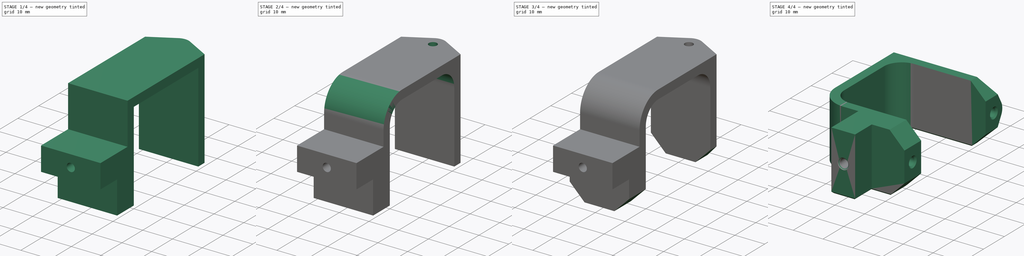
[diagram: build sequence overview — one tinted view per stage of 4, left to right]
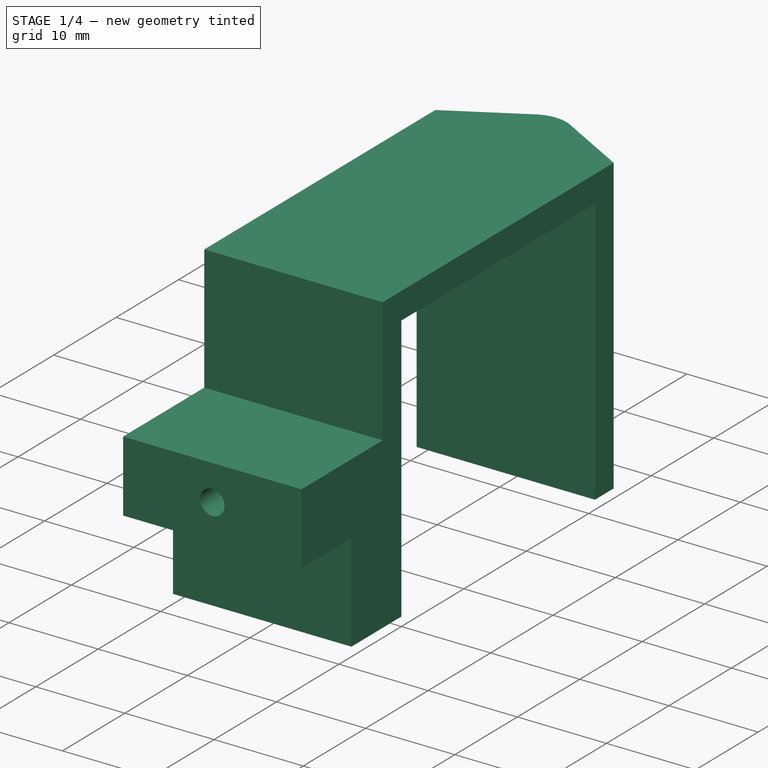
[diagram: stage 1 of 4 — iso view after this stage's code; geometry added in this stage tinted green]
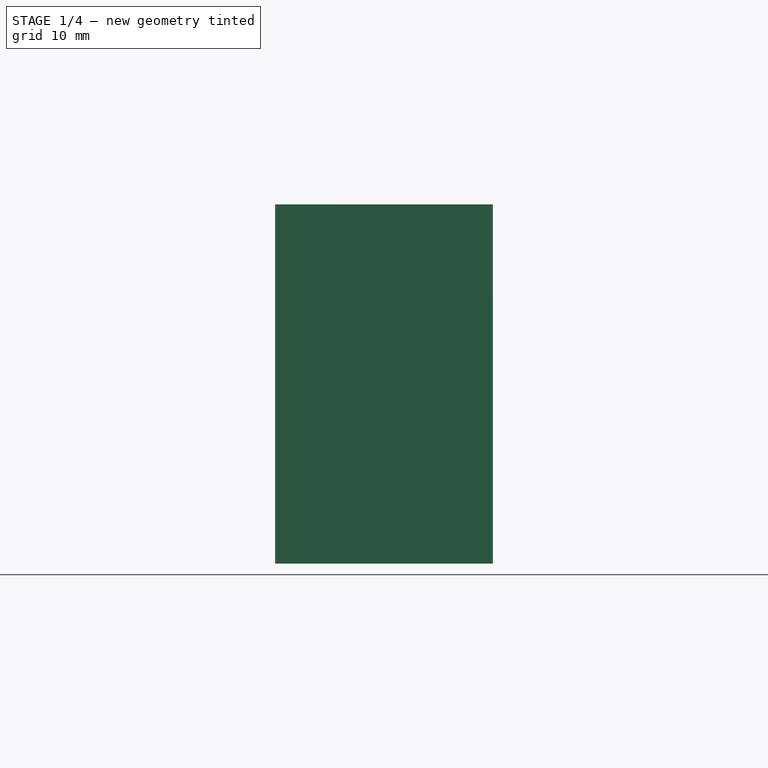
[diagram: stage 1 of 4 — front view after this stage's code; geometry added in this stage tinted green]
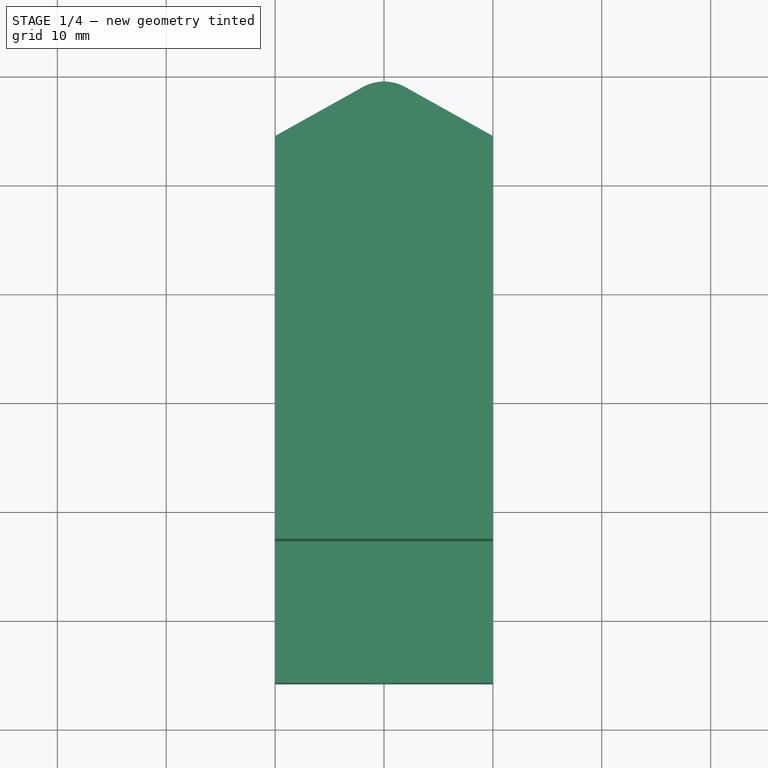
[diagram: stage 1 of 4 — top view after this stage's code; geometry added in this stage tinted green]
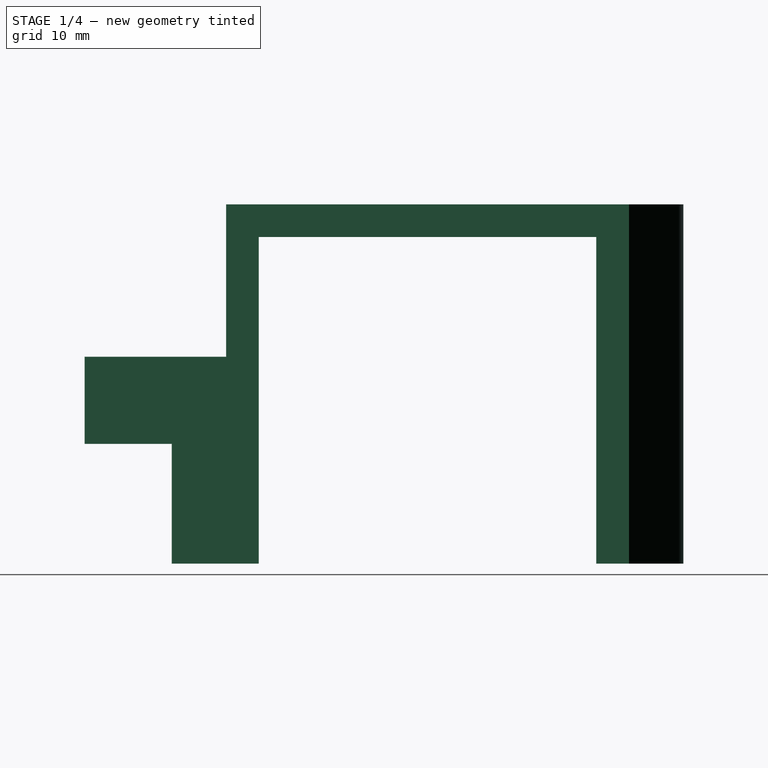
[diagram: stage 1 of 4 — right view after this stage's code; geometry added in this stage tinted green]
FCSTD DOCUMENT  (FreeCAD 0.14R3692 (Git))
Label: battery-bracket
License: The MIT License
LicenseURL: http://opensource.org/licenses/MIT
objects: Sketcher::SketchObject×5, PartDesign::Pocket×3, Part::Chamfer×3, PartDesign::Pad×2, Part::FeaturePython×2, Part::Fillet×1, Part::Feature×1, App::DocumentObjectGroup×1
note: 22 computed .brp shape members not serialized (recipe doc carries the construction recipe); baked Part::Feature solids carry a one-line shape summary decoded from their .brp

FEATURE [Sketcher::SketchObject] Sketch  label="bracket-sketch"
  Placement = pos=(0,0,0) rot=(0.57735,0.57735,0.57735;2.0944rad)
  sketch-geometry (12):
    g0: LineSegment StartX=4 StartY=4 StartZ=0 EndX=17 EndY=4 EndZ=0
    g1: LineSegment StartX=17 StartY=4 StartZ=0 EndX=17 EndY=18 EndZ=0
    g2: LineSegment StartX=17 StartY=18 StartZ=0 EndX=54 EndY=18 EndZ=0
    g3: LineSegment StartX=54 StartY=18 StartZ=0 EndX=54 EndY=-15 EndZ=0
    g4: LineSegment StartX=54 StartY=-15 StartZ=0 EndX=51 EndY=-15 EndZ=0
    g5: LineSegment StartX=51 StartY=-15 StartZ=0 EndX=51 EndY=15 EndZ=0
    g6: LineSegment StartX=51 StartY=15 StartZ=0 EndX=20 EndY=15 EndZ=0
    g7: LineSegment StartX=20 StartY=15 StartZ=0 EndX=20 EndY=-15 EndZ=0
    g8: LineSegment StartX=20 StartY=-15 StartZ=0 EndX=12 EndY=-15 EndZ=0
    g9: LineSegment StartX=12 StartY=-15 StartZ=0 EndX=12 EndY=-4 EndZ=0
    g10: LineSegment StartX=12 StartY=-4 StartZ=0 EndX=4 EndY=-4 EndZ=0
    g11: LineSegment StartX=4 StartY=-4 StartZ=0 EndX=4 EndY=4 EndZ=0
  constraints (36):
    c: Horizontal(g0)
    c: Coincident(g0,g1)
    c: Vertical(g1)
    c: Coincident(g1,g2)
    c: Horizontal(g2)
    c: Coincident(g2,g3)
    c: Vertical(g3)
    c: Coincident(g3,g4)
    c: Horizontal(g4)
    c: Coincident(g4,g5)
    c: Vertical(g5)
    c: Coincident(g5,g6)
    c: Horizontal(g6)
    c: Coincident(g6,g7)
    c: Coincident(g7,g8)
    c: Horizontal(g8)
    c: Coincident(g8,g9)
    c: Vertical(g9)
    c: Coincident(g9,g10)
    c: Horizontal(g10)
    c: Coincident(g10,g11)
    c: Vertical(g11)
    c: Vertical(g7)
    c: Coincident(g0,g11)
    c: Symmetric(g0,g10,g-1)
    c: DistanceY(g11) = 8
    c: DistanceX(g-1,g10) = 4
    c: DistanceY(g-1,g1) = 18
    c: DistanceY(g-1,g8) = -15
    c: DistanceY(g-1,g3) = -15
    c: DistanceX(g6) = -31
    c: DistanceY(g7) = -30
    c: DistanceX(g4) = -3
    c: DistanceX(g0,g6) = 3
    c: DistanceX(g8) = -8
    c: DistanceX(g10) = -8
FEATURE [PartDesign::Pad] Pad  label="bracket-pad"
  Length = 20
  Length2 = 100
  Midplane = true
  Placement = pos=(0,0,0) rot=(0.57735,0.57735,0.57735;2.0944rad)
  Sketch = -> Sketch
  Type = 0
FEATURE [Sketcher::SketchObject] Sketch001  label="motor-bracket-screw-hole-sketch"
  Placement = pos=(0,4,0) rot=(-0.57735,-0.57735,0.57735;4.18879rad)
  Support = -> Pad [Face12]
  sketch-geometry (1):
    g0: Circle CenterX=0 CenterY=0 CenterZ=0 NormalX=0 NormalY=0 NormalZ=1 Radius=1.375
  constraints (2):
    c: Coincident(g0,g-1)
    c: Radius(g0) = 1.375
FEATURE [PartDesign::Pocket] Pocket  label="motor-bracket-screw-hole-pocket"
  Length = 10
  Placement = pos=(0,0,0) rot=(0.57735,0.57735,0.57735;2.0944rad)
  Sketch = -> Sketch001
  Type = 0
FEATURE [Sketcher::SketchObject] Sketch002  label="bracket-rear-sketch"
  Placement = pos=(0,0,18) rot=(0,0,-1;1.5708rad)
  Support = -> Pocket [Face8]
  sketch-geometry (4):
    g0: ArcOfCircle CenterX=-55 CenterY=0 CenterZ=0 NormalX=0 NormalY=0 NormalZ=1 Radius=4 StartAngle=2.63257 EndAngle=3.65061
    g1: LineSegment StartX=-58.4929 StartY=1.94929 StartZ=0 EndX=-54 EndY=10 EndZ=0
    g2: LineSegment StartX=-54 StartY=10 StartZ=0 EndX=-54 EndY=-10 EndZ=0
    g3: LineSegment StartX=-54 StartY=-10 StartZ=0 EndX=-58.4929 EndY=-1.94929 EndZ=0
  constraints (13):
    c: PointOnObject(g0,g-1)
    c: DistanceX(g-1,g0) = -55
    c: Radius(g0) = 4
    c: Coincident(g1,g2)
    c: Coincident(g2,g3)
    c: Coincident(g1,g0)
    c: Coincident(g3,g0)
    c: Tangent(g0,g1)
    c: Tangent(g0,g3)
    c: Equal(g3,g1)
    c: DistanceY(g2) = -20
    c: Vertical(g2)
    c: DistanceX(g2,g0) = -1
FEATURE [PartDesign::Pad] Pad001  label="bracket-rear-pad"
  Length = 33
  Length2 = 100
  Placement = pos=(0,0,0) rot=(0.57735,0.57735,0.57735;2.0944rad)
  Reversed = true
  Sketch = -> Sketch002
  Type = 0
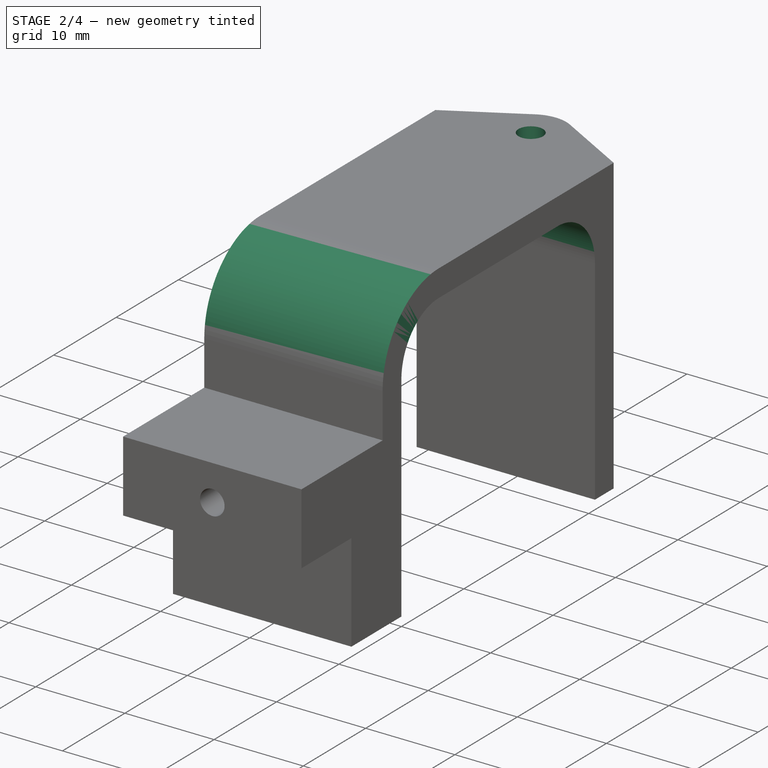
[diagram: stage 2 of 4 — iso view after this stage's code; geometry added in this stage tinted green]
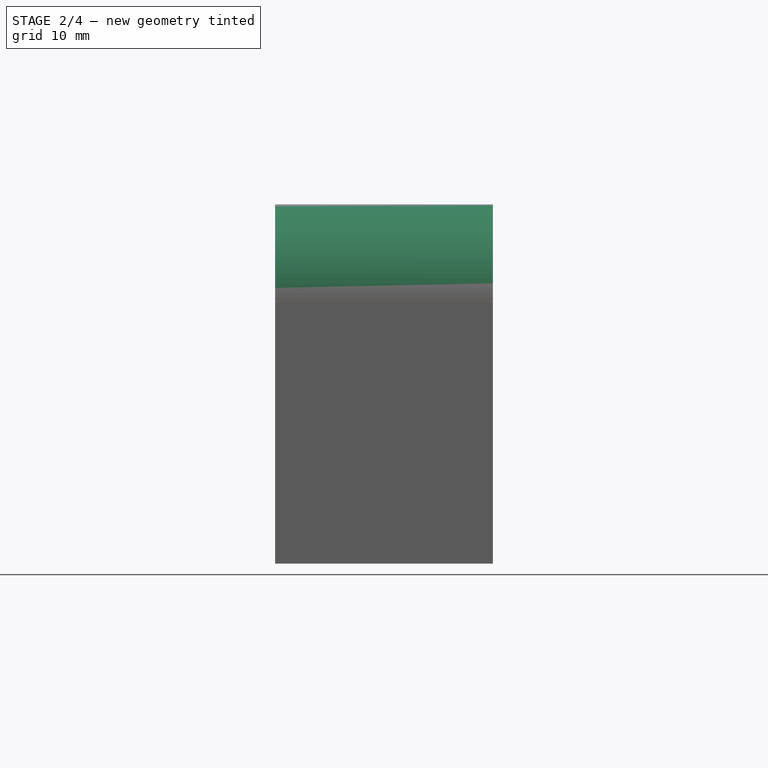
[diagram: stage 2 of 4 — front view after this stage's code; geometry added in this stage tinted green]
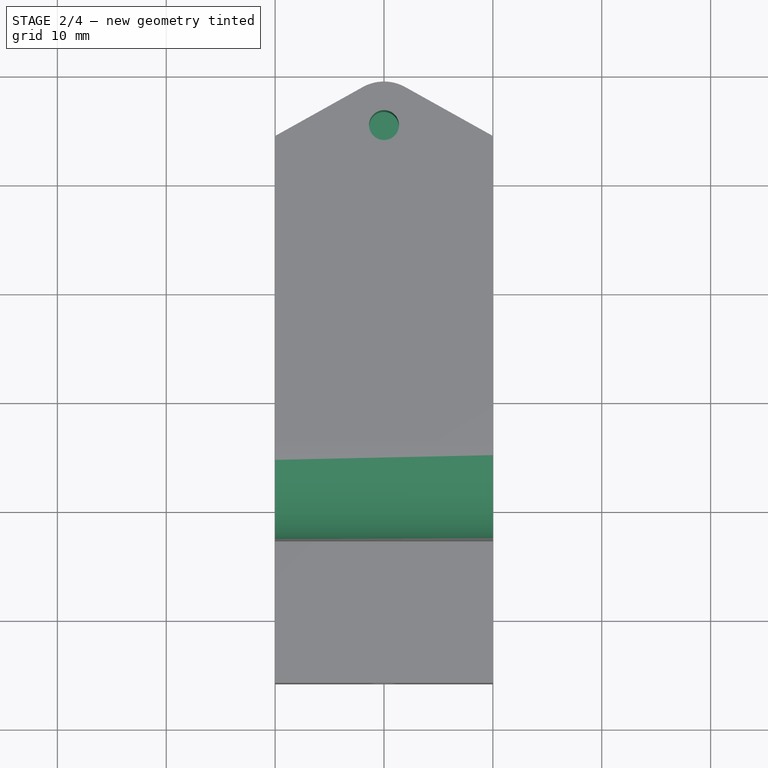
[diagram: stage 2 of 4 — top view after this stage's code; geometry added in this stage tinted green]
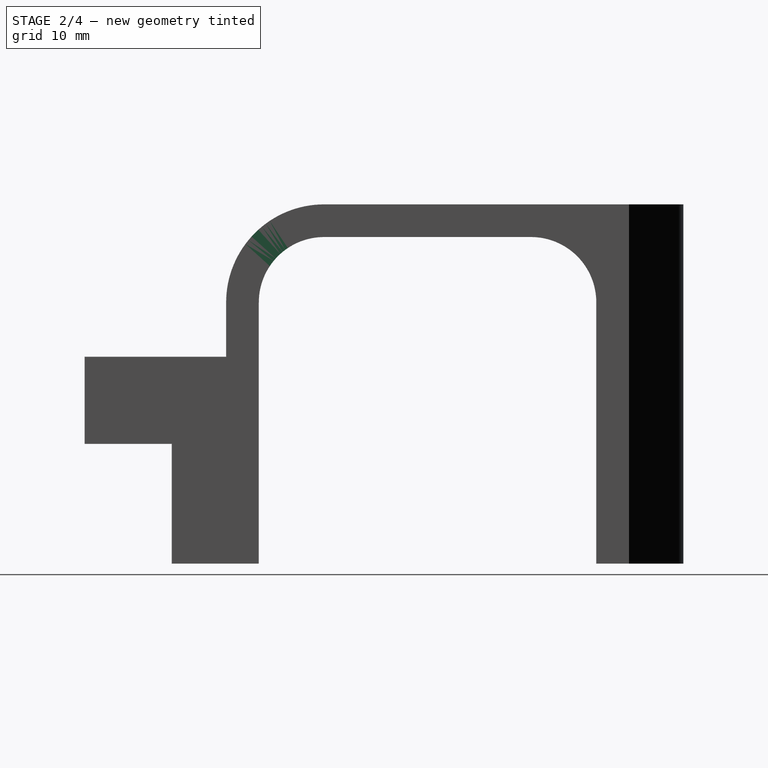
[diagram: stage 2 of 4 — right view after this stage's code; geometry added in this stage tinted green]
FEATURE [Sketcher::SketchObject] Sketch003  label="top-screw-hole-sketch"
  Placement = pos=(0,0,18) rot=(0,0,-1;1.5708rad)
  Support = -> Pad001 [Face17]
  sketch-geometry (1):
    g0: Circle CenterX=-55 CenterY=0 CenterZ=0 NormalX=0 NormalY=0 NormalZ=1 Radius=1.375
  constraints (3):
    c: PointOnObject(g0,g-1)
    c: DistanceX(g-1,g0) = -55
    c: Radius(g0) = 1.375
FEATURE [PartDesign::Pocket] Pocket001  label="top-screw-hole-pocket"
  Length = 10
  Placement = pos=(0,0,0) rot=(0.57735,0.57735,0.57735;2.0944rad)
  Sketch = -> Sketch003
  Type = 0
FEATURE [Sketcher::SketchObject] Sketch004  label="bottom-screw-holes-sketch"
  Placement = pos=(0,0,-15) rot=(0.707107,0.707107,0;3.14159rad)
  Support = -> Pocket001 [Face12]
  sketch-geometry (2):
    g0: Circle CenterX=55 CenterY=0 CenterZ=0 NormalX=0 NormalY=0 NormalZ=1 Radius=1.375
    g1: Circle CenterX=16 CenterY=0 CenterZ=0 NormalX=0 NormalY=0 NormalZ=1 Radius=1.375
  constraints (6):
    c: PointOnObject(g0,g-1)
    c: PointOnObject(g1,g-1)
    c: Radius(g1) = 1.375
    c: Radius(g0) = 1.375
    c: DistanceX(g-1,g0) = 55
    c: DistanceX(g-1,g1) = 16
FEATURE [PartDesign::Pocket] Pocket002  label="bottom-screw-holes-pocket"
  Length = 10
  Placement = pos=(0,0,0) rot=(0.57735,0.57735,0.57735;2.0944rad)
  Sketch = -> Sketch004
  Type = 0
FEATURE [Part::Fillet] Fillet  label="battery-fillet"
  Base = -> Pocket002
  Edges = 3 edges: [Edge9 r=9,Edge46 r=6,Edge47 r=6]
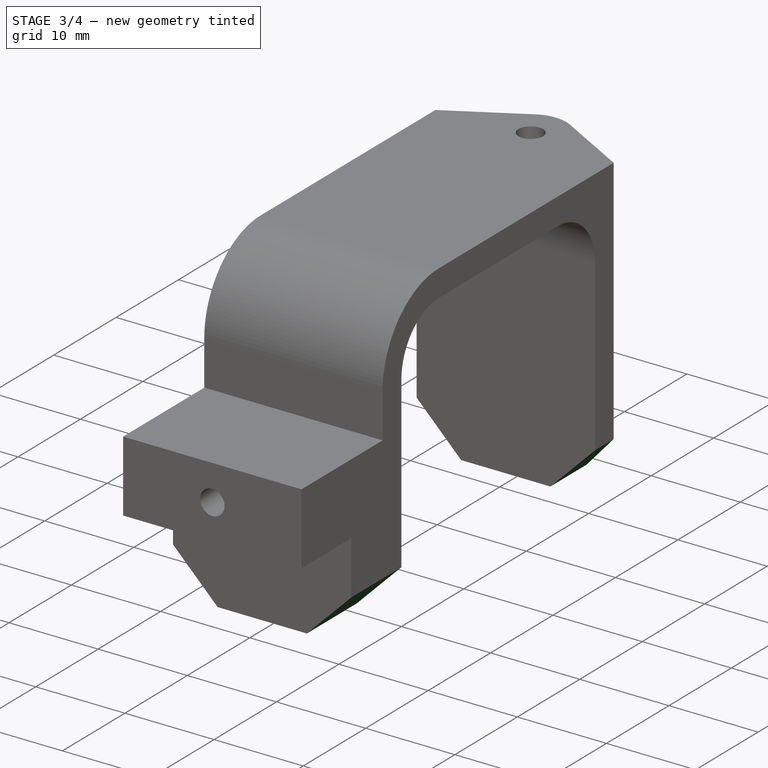
[diagram: stage 3 of 4 — iso view after this stage's code; geometry added in this stage tinted green]
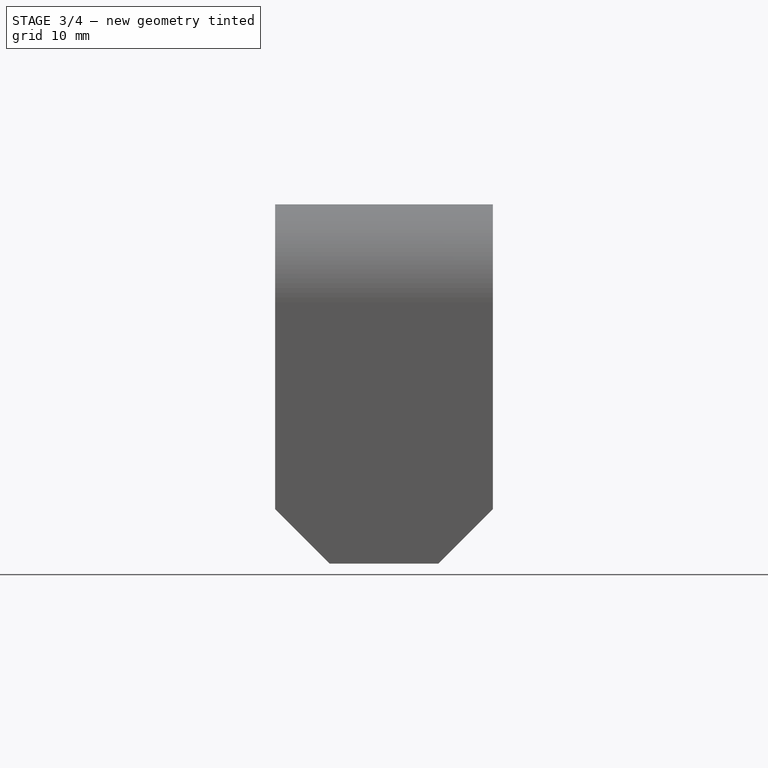
[diagram: stage 3 of 4 — front view after this stage's code; geometry added in this stage tinted green]
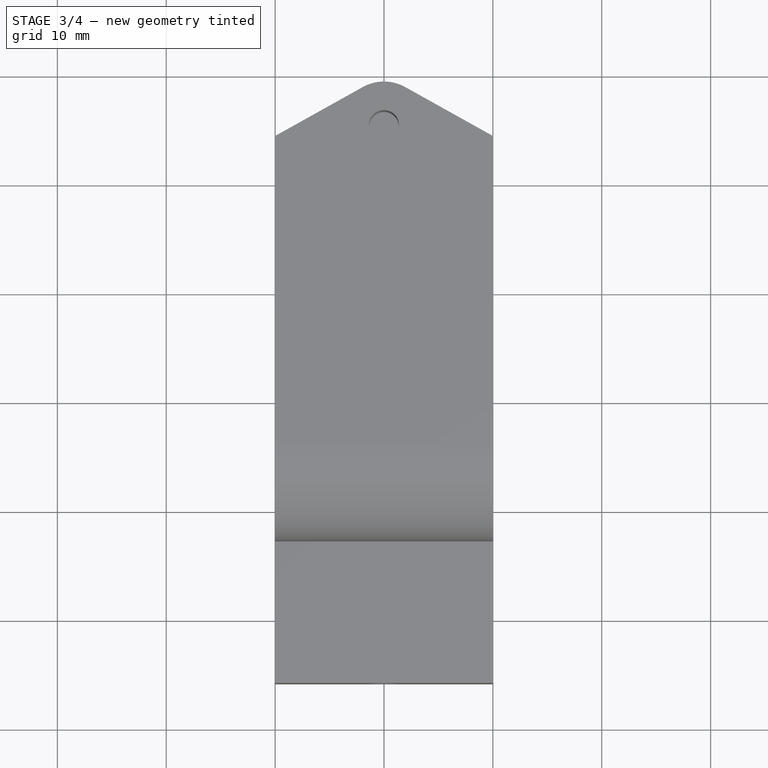
[diagram: stage 3 of 4 — top view after this stage's code; geometry added in this stage tinted green]
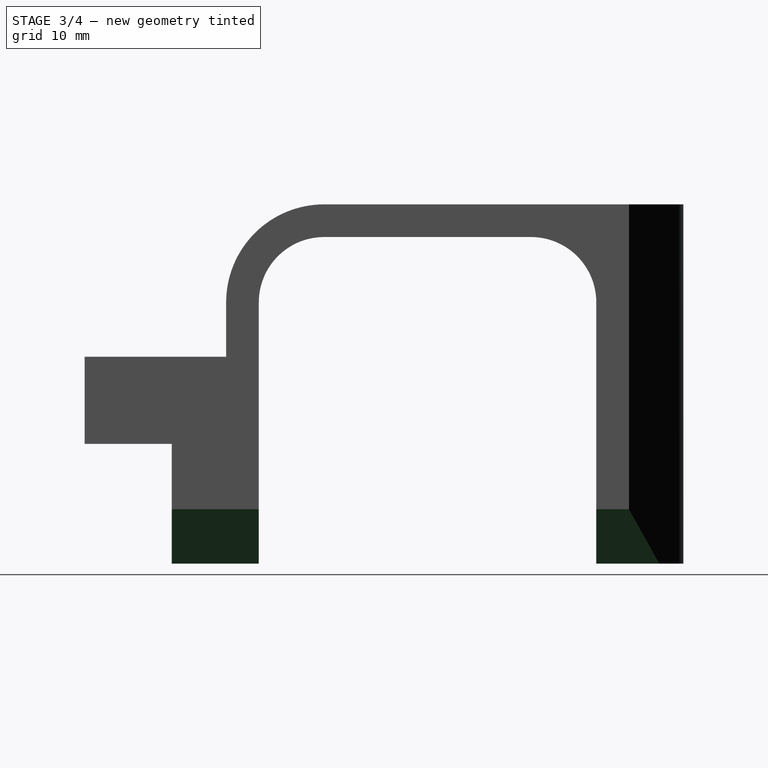
[diagram: stage 3 of 4 — right view after this stage's code; geometry added in this stage tinted green]
FEATURE [Part::Chamfer] Chamfer  label="bottom-chamfer"
  Base = -> Fillet
  Edges = 4 edges r=5: [Edge11,Edge14,Edge27,Edge30]
FEATURE [Part::FeaturePython] Clone  label="battery-bracket"  # Draft clone (typed FeaturePython)
  Objects = -> [Chamfer]
  Scale = (1,1,1)
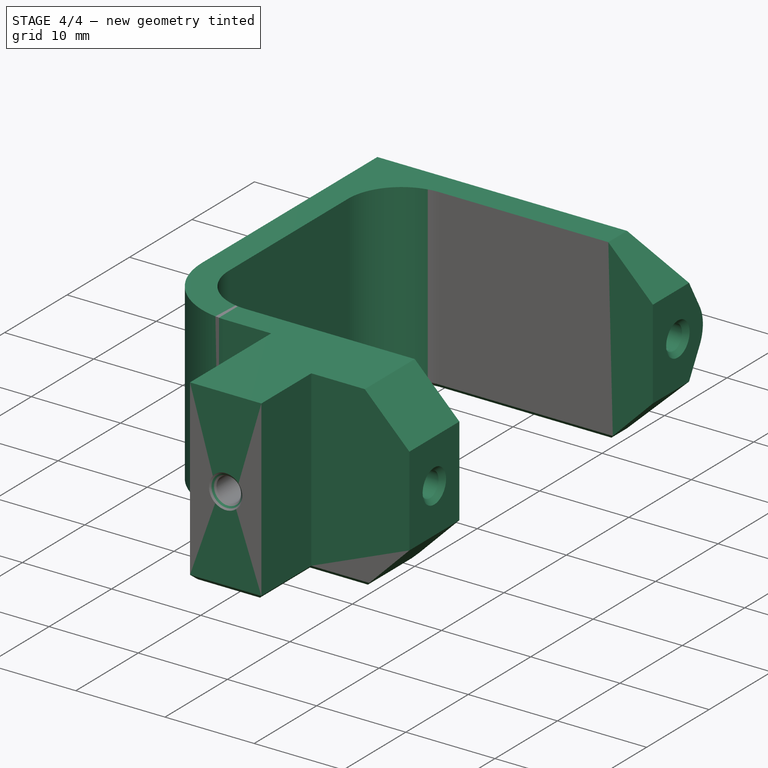
[diagram: stage 4 of 4 — iso view after this stage's code; geometry added in this stage tinted green]
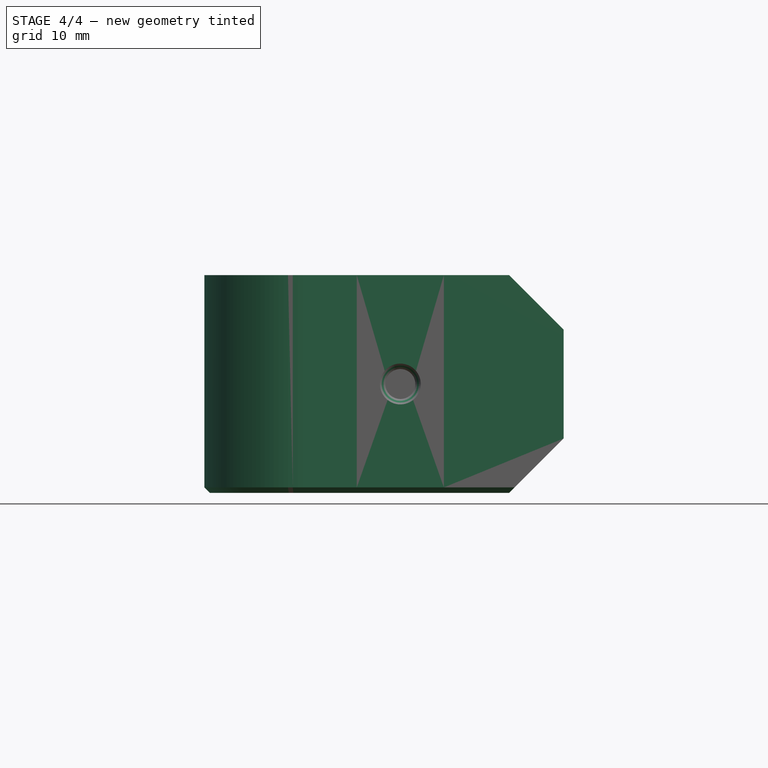
[diagram: stage 4 of 4 — front view after this stage's code; geometry added in this stage tinted green]
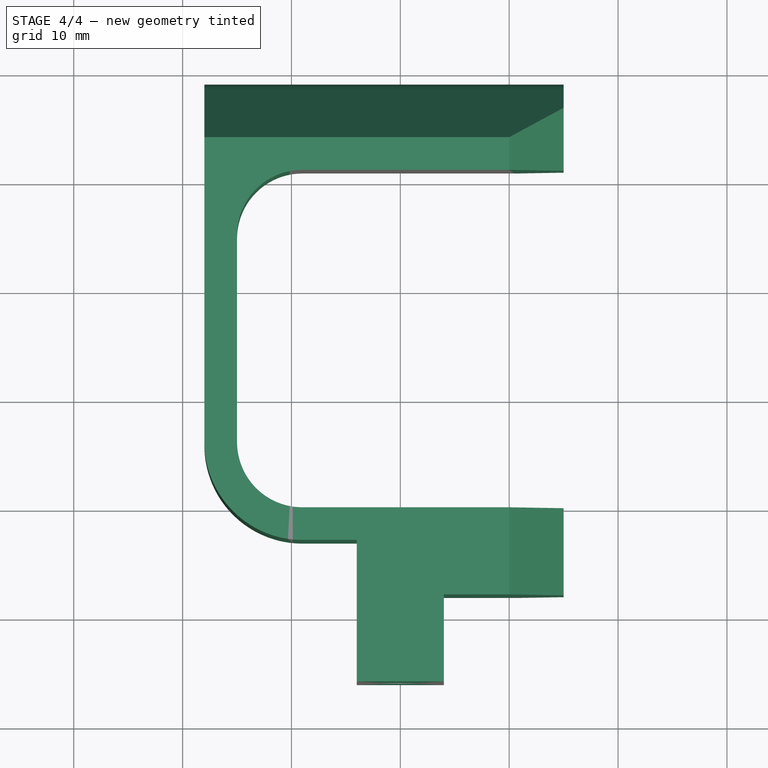
[diagram: stage 4 of 4 — top view after this stage's code; geometry added in this stage tinted green]
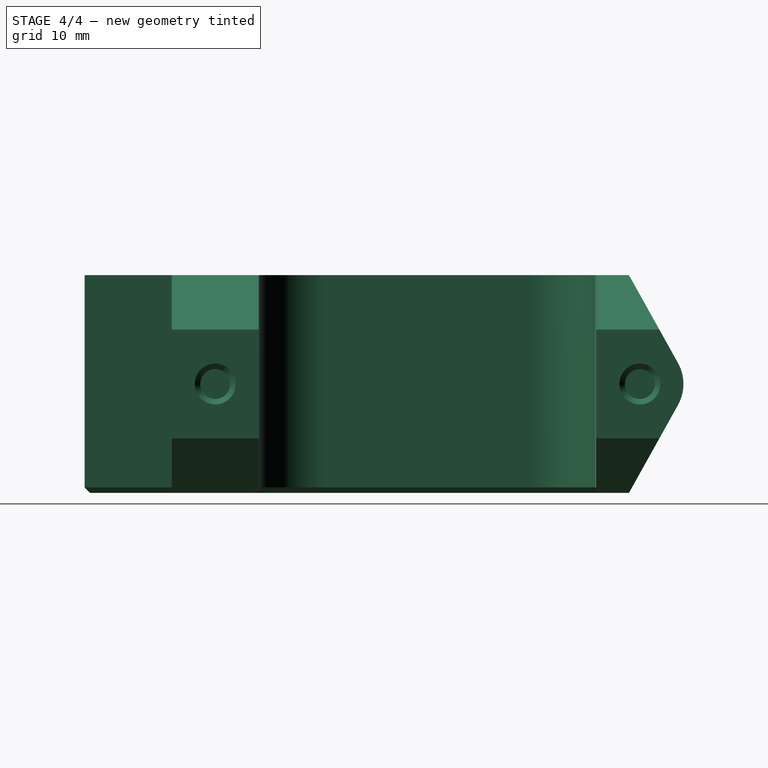
[diagram: stage 4 of 4 — right view after this stage's code; geometry added in this stage tinted green]
FEATURE [Part::Chamfer] Chamfer001  label="screw-chamfer"
  Base = -> Clone
  Edges = 4 edges r=0.5: [Edge26,Edge43,Edge60,Edge71]
FEATURE [Part::Chamfer] Chamfer002  label="printing-chamfer"
  Base = -> Chamfer001
  Edges = 12 edges r=0.5: [Edge2,Edge12,Edge13,Edge14,Edge15,Edge16,Edge17,Edge18,Edge19,Edge20,Edge21,Edge23]
FEATURE [Part::FeaturePython] Clone001  label="battery-bracket (printing)"  # Draft clone (typed FeaturePython)
  Objects = -> [Chamfer002]
  Placement = pos=(0,0,0) rot=(0,-1,0;1.5708rad)
  Scale = (1,1,1)
FEATURE [Part::Feature] Part__Feature  label="battery"
  Placement = pos=(0,35.5,0) rot=(0,0,1;0rad)
  shape: bbox 57 x 31.99 x 30.99 mm, 26 faces (baked)
FEATURE [App::DocumentObjectGroup] Group  label="components"
  Group = -> [Part__Feature]
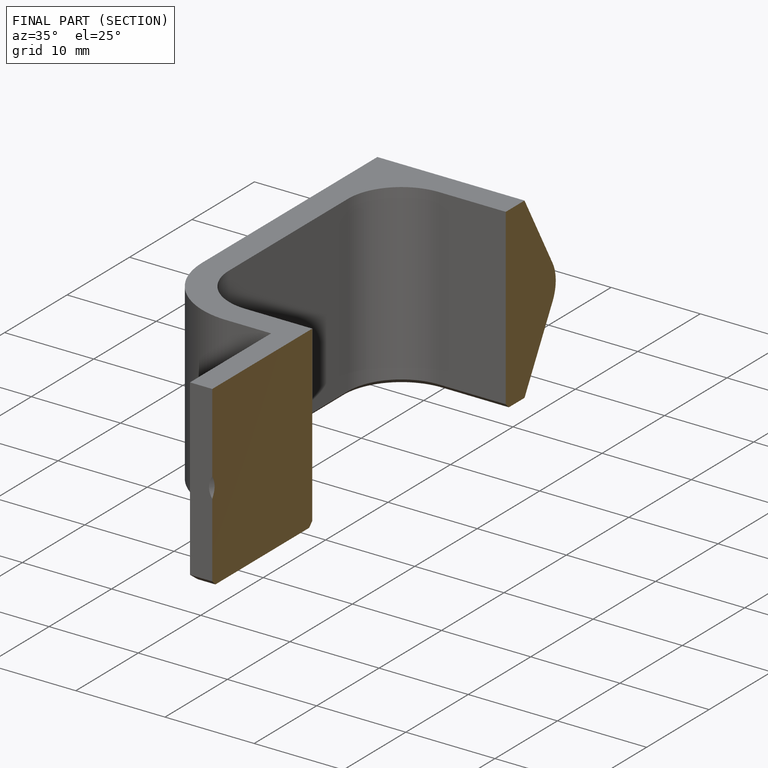
[diagram: finished part — half-section view (interior)]
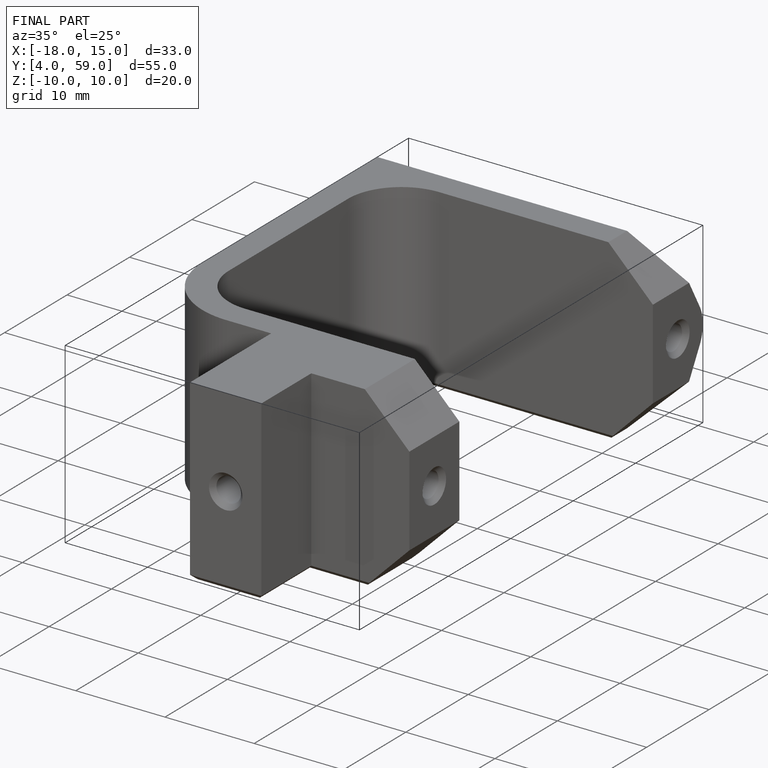
[diagram: finished part — iso view with bounding-box wireframe]
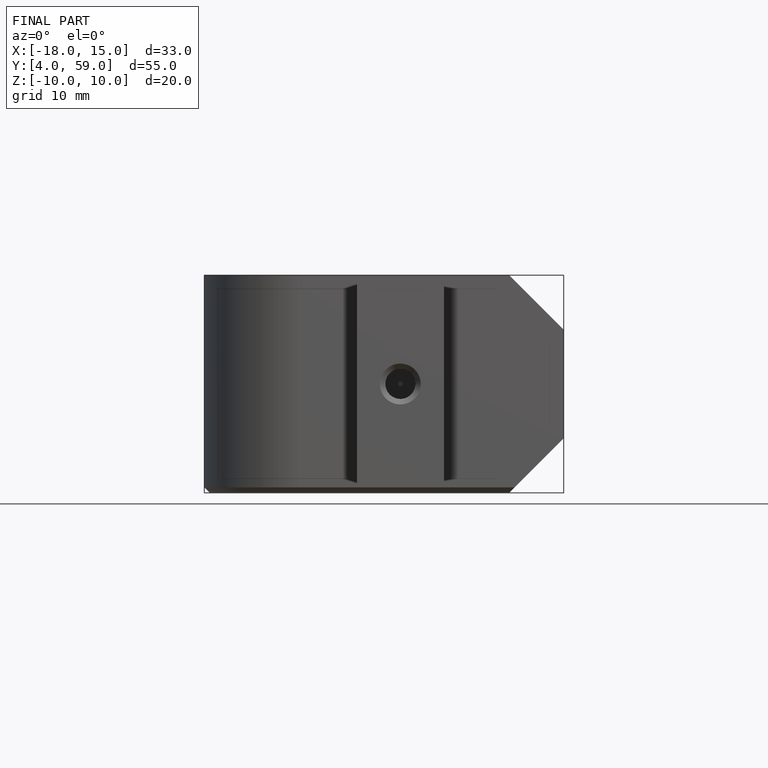
[diagram: finished part — front view with bounding-box wireframe]
